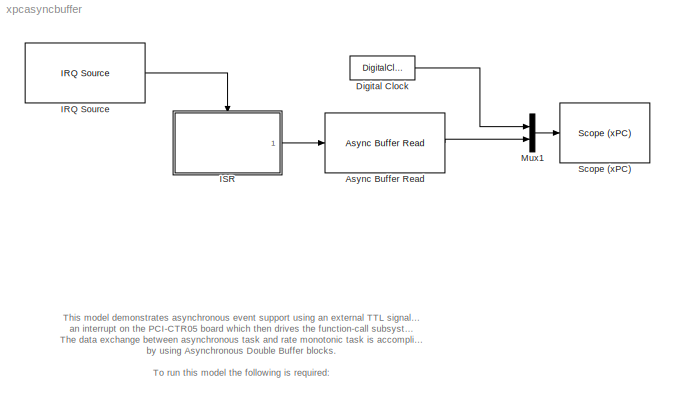
MODEL xpcasyncbuffer
KIND model
BLOCK [Reference] Async Buffer Read  REF=xpclib/Asynchronous\nEvent/Async Buffer Read
  Ports = [1, 1]
  SourceBlock = xpclib/Asynchronous\nEvent/Async Buffer Read
  SourceType = Asynchronous Buffer Block: Read
  sample_time = 0.001
BLOCK [DigitalClock] Digital Clock
  SampleTime = 0.001
BLOCK [Reference] IRQ Source  REF=xpclib/Asynchronous\nEvent/IRQ Source
  Ports = [0, 1]
  SourceBlock = xpclib/Asynchronous\nEvent/IRQ Source
  SourceType = xpcinterrupt
  b_type = CB PCI-CTR05
  irqNo = 5
  preempt = on
  slot = -1
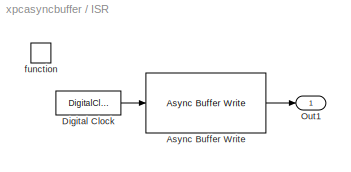
BLOCK [SubSystem] ISR
  MinAlgLoopOccurrences = off
  Ports = [0, 1, 0, 1]
  PropExecContextAcrossSSBoundary = on
  RTWSystemCode = Auto
  TreatAsAtomicUnit = on
BLOCK [Reference] ISR/Async Buffer Write  REF=xpclib/Asynchronous\nEvent/Async Buffer Write
  Ports = [1, 1]
  SourceBlock = xpclib/Asynchronous\nEvent/Async Buffer Write
  SourceType = Asynchronous Buffer Block: Write
  sample_time = -1
BLOCK [DigitalClock] ISR/Digital Clock
  SampleTime = -1
BLOCK [Outport] ISR/Out1
  BusOutputAsStruct = off
  IconDisplay = Port number
BLOCK [TriggerPort] ISR/function
  Ports = []
  TriggerType = function-call
BLOCK [Mux] Mux1
  DisplayOption = bar
  Inputs = 2
  Ports = [2, 1]
BLOCK [Reference] Scope (xPC)   REF=xpclib/Misc./Scope (xPC) 
  Ports = [1]
  ShowPortLabels = on
  SourceBlock = xpclib/Misc./Scope (xPC)
  SourceType = xpcscopeblock
  autorestart = off
  autostart = on
  filename = data.dat
  formatstr = '%15.6f'
  grid = on
  interleave = 1
  mode = Lazy
  noprepostsamples = 0
  nosamples = 3
  scopeno = 1
  scopetype = Target
  triggerlevel = 0.0
  triggermode = FreeRun
  triggersample = 0
  triggerscope = 1
  triggersignal = 1
  triggerslope = Either
  viewmode = Numerical
  writesize = 512
  ylimits = [0,0]
ANNOTATION (root): This model demonstrates asynchronous event support using an external TTL signal firing \nan interrupt on the PCI-CTR05 board which then drives the function-call subsystem above.\nThe data exchange between asynchronous task and rate monotonic task is accomplished\n by using Asynchronous Double Buffer blocks.\n\nTo run this model the following is required:\n\n1. Install the PCI-CTR05 in the target m...<+737ch>
LINE Async Buffer Read:1 -> Mux1:2
LINE Digital Clock:1 -> Mux1:1
LINE IRQ Source:1 -> ISR:trigger
LINE ISR/Async Buffer Write:1 -> ISR/Out1:1
LINE ISR/Digital Clock:1 -> ISR/Async Buffer Write:1
LINE ISR:1 -> Async Buffer Read:1
LINE Mux1:1 -> Scope (xPC) :1
